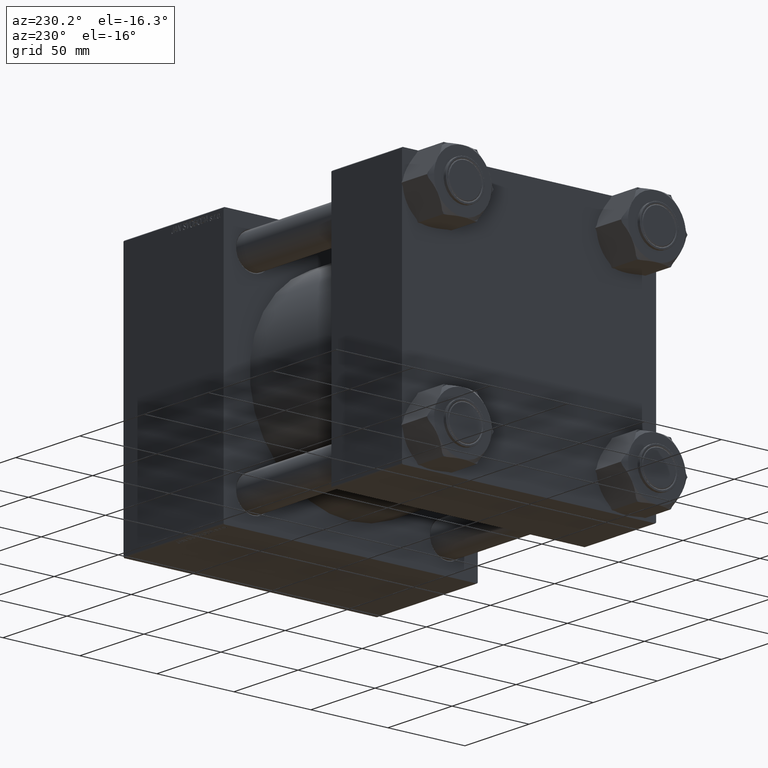
[diagram: clean part render]
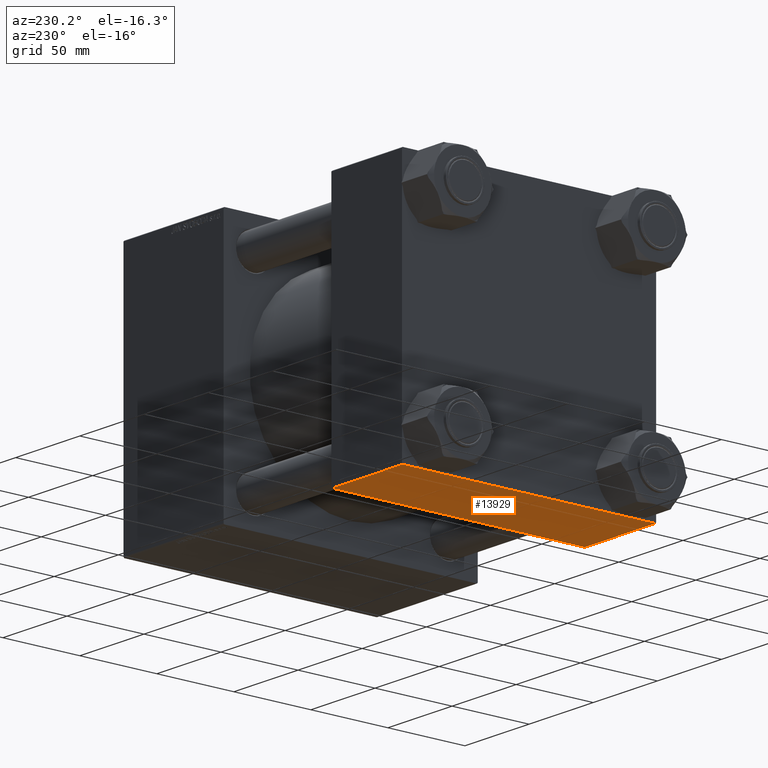
[diagram: same view with one face highlighted and labeled with its STEP entity id]
A machine part, auxiliary view. The second image highlights one B-rep face of the part: STEP entity #13929.
In plain terms, the highlighted planar face has unit normal (0, 0, -1).
Its self-contained STEP definition (entity closure, byte-faithful):
#95 = VERTEX_POINT ( 'NONE', #29108 ) ;
#548 = AXIS2_PLACEMENT_3D ( 'NONE', #21804, #25653, #17465 ) ;
#1018 = LINE ( 'NONE', #1521, #2610 ) ;
#1521 = CARTESIAN_POINT ( 'NONE',  ( 55.00000000000000000, 82.50000000000001421, -82.49999999999998579 ) ) ;
#1595 = DIRECTION ( 'NONE',  ( 1.000000000000000000, 0.000000000000000000, 0.000000000000000000 ) ) ;
#1950 = ORIENTED_EDGE ( 'NONE', *, *, #2487, .T. ) ;
#2487 = EDGE_CURVE ( 'NONE', #95, #11344, #19995, .T. ) ;
#2610 = VECTOR ( 'NONE', #12331, 1000.000000000000000 ) ;
#3603 = CARTESIAN_POINT ( 'NONE',  ( 0.000000000000000000, 82.50000000000001421, -82.49999999999998579 ) ) ;
#3894 = VECTOR ( 'NONE', #50766, 1000.000000000000000 ) ;
#9314 = CARTESIAN_POINT ( 'NONE',  ( 55.00000000000000000, 82.00000000000004263, -82.49999999999998579 ) ) ;
#11344 = VERTEX_POINT ( 'NONE', #45167 ) ;
#12331 = DIRECTION ( 'NONE',  ( 0.000000000000000000, -1.000000000000000000, 0.000000000000000000 ) ) ;
#13929 = ADVANCED_FACE ( 'NONE', ( #30015 ), #25408, .T. ) ;
#15890 = EDGE_CURVE ( 'NONE', #39295, #26088, #29331, .T. ) ;
#17465 = DIRECTION ( 'NONE',  ( -1.000000000000000000, 0.000000000000000000, -0.000000000000000000 ) ) ;
#17608 = EDGE_LOOP ( 'NONE', ( #37110, #28145, #44806, #1950 ) ) ;
#19222 = CARTESIAN_POINT ( 'NONE',  ( 0.000000000000000000, -81.99999999999995737, -82.49999999999998579 ) ) ;
#19995 = LINE ( 'NONE', #19222, #3894 ) ;
#20216 = CARTESIAN_POINT ( 'NONE',  ( 0.000000000000000000, 82.00000000000004263, -82.49999999999998579 ) ) ;
#21804 = CARTESIAN_POINT ( 'NONE',  ( 55.00000000000000000, 82.50000000000001421, -82.49999999999998579 ) ) ;
#25408 = PLANE ( 'NONE',  #548 ) ;
#25653 = DIRECTION ( 'NONE',  ( 0.000000000000000000, 0.000000000000000000, -1.000000000000000000 ) ) ;
#25967 = EDGE_CURVE ( 'NONE', #39295, #11344, #39560, .T. ) ;
#26088 = VERTEX_POINT ( 'NONE', #26153 ) ;
#26153 = CARTESIAN_POINT ( 'NONE',  ( 55.00000000000000000, 82.00000000000004263, -82.49999999999998579 ) ) ;
#28145 = ORIENTED_EDGE ( 'NONE', *, *, #15890, .T. ) ;
#28886 = EDGE_CURVE ( 'NONE', #26088, #95, #1018, .T. ) ;
#29108 = CARTESIAN_POINT ( 'NONE',  ( 55.00000000000000000, -81.99999999999995737, -82.49999999999998579 ) ) ;
#29331 = LINE ( 'NONE', #9314, #39997 ) ;
#30015 = FACE_OUTER_BOUND ( 'NONE', #17608, .T. ) ;
#34939 = DIRECTION ( 'NONE',  ( 0.000000000000000000, -1.000000000000000000, 0.000000000000000000 ) ) ;
#37049 = VECTOR ( 'NONE', #34939, 1000.000000000000000 ) ;
#37110 = ORIENTED_EDGE ( 'NONE', *, *, #25967, .F. ) ;
#39295 = VERTEX_POINT ( 'NONE', #20216 ) ;
#39560 = LINE ( 'NONE', #3603, #37049 ) ;
#39997 = VECTOR ( 'NONE', #1595, 1000.000000000000000 ) ;
#44806 = ORIENTED_EDGE ( 'NONE', *, *, #28886, .T. ) ;
#45167 = CARTESIAN_POINT ( 'NONE',  ( 0.000000000000000000, -81.99999999999995737, -82.49999999999998579 ) ) ;
#50766 = DIRECTION ( 'NONE',  ( -1.000000000000000000, 0.000000000000000000, 0.000000000000000000 ) ) ;